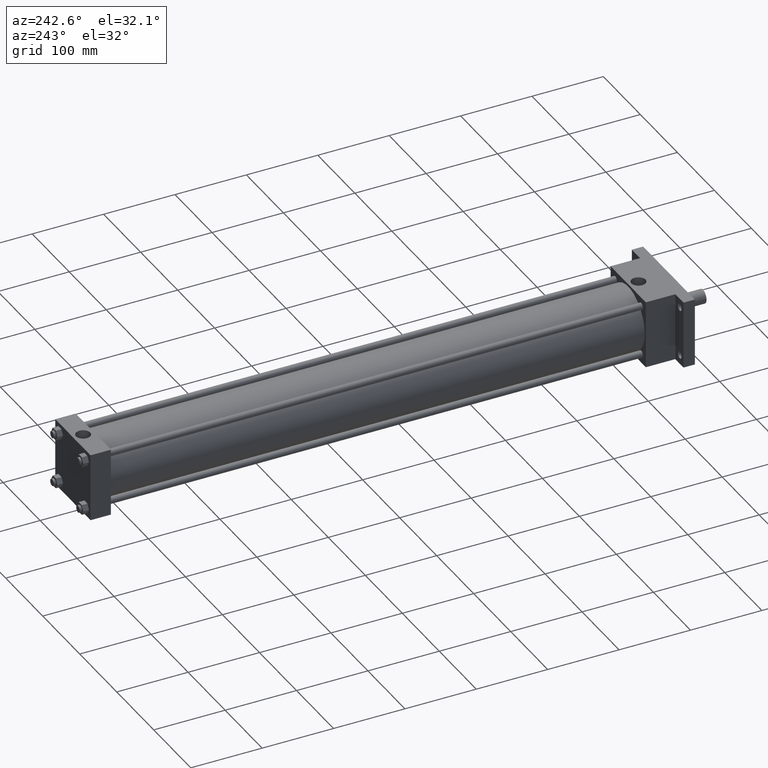
[diagram: clean part render]
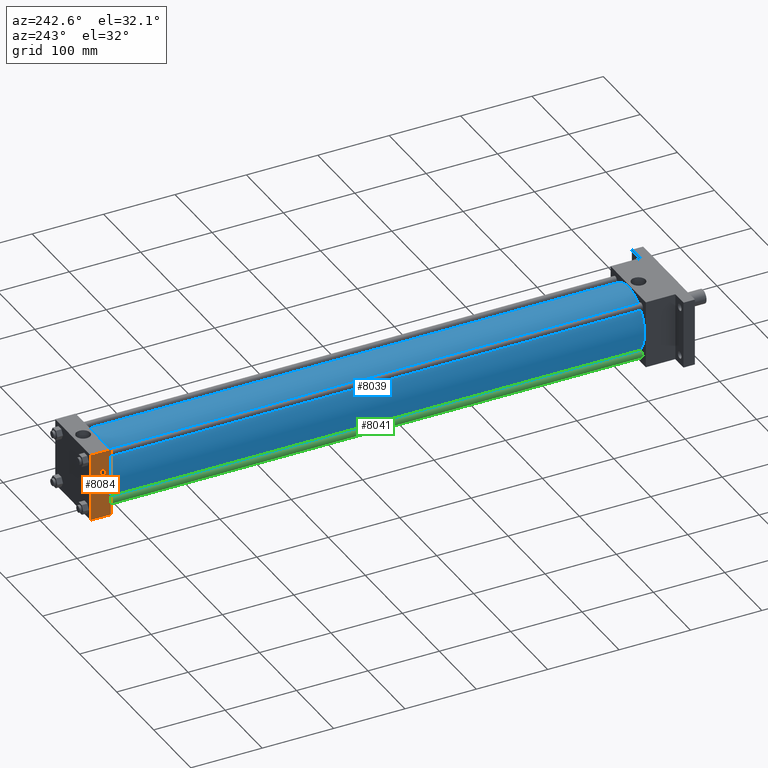
[diagram: same view with three faces highlighted in distinct colors, each labeled with its STEP entity id]
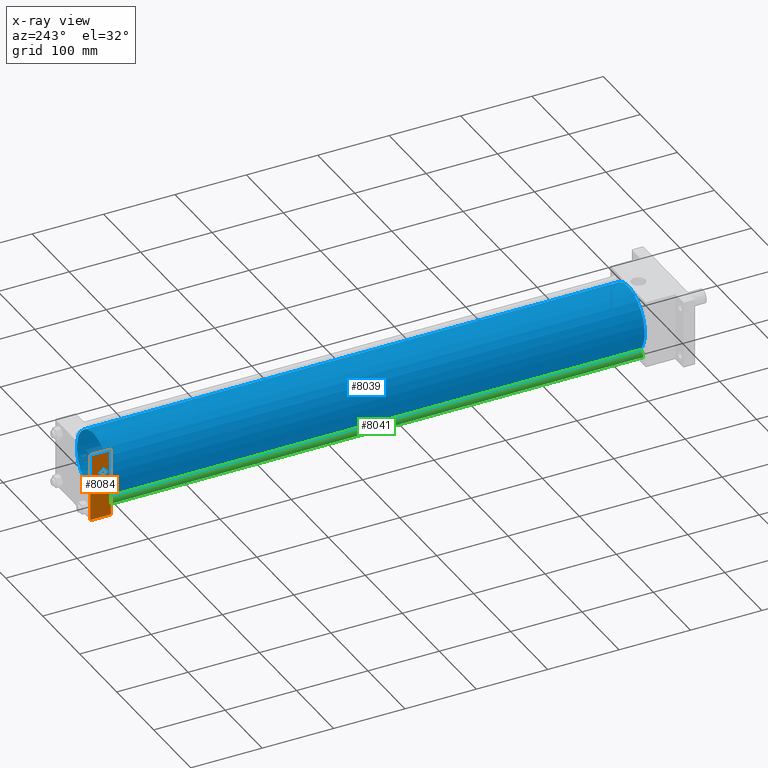
[diagram: x-ray of the same camera — body ghosted, the three highlighted faces saturated]
A machine part, auxiliary view with three faces highlighted in distinct colors.
The next image is the same camera in x-ray (body ghosted, the three faces saturated) — at least one of them is partly hidden behind the body in this view.
Their STEP definitions:

[orange] entity #8084 — the highlighted planar face has unit normal (-1, 0, 0).
#2244=VERTEX_POINT('',#2246);
#2246=CARTESIAN_POINT('',(-4.762500000E+001,8.540750000E+002,-4.762500000E+001));
#2248=EDGE_CURVE('',#2253,#2244,#2249,.T.);
#2249=LINE('',#2250,#2251);
#2250=CARTESIAN_POINT('',(-4.762500000E+001,8.540750000E+002,4.762500000E+001));
#2251=VECTOR('',#2252,1.0E+000);
#2252=DIRECTION('',(0.0E+000,0.0E+000,-1.0E+000));
#2253=VERTEX_POINT('',#2254);
#2254=CARTESIAN_POINT('',(-4.762500000E+001,8.540750000E+002,4.762500000E+001));
#2417=VERTEX_POINT('',#2419);
#2419=CARTESIAN_POINT('',(-4.762500000E+001,8.255000000E+002,-4.762500000E+001));
#2433=VERTEX_POINT('',#2434);
#2434=CARTESIAN_POINT('',(-4.762500000E+001,8.255000000E+002,4.762500000E+001));
#2435=EDGE_CURVE('',#2433,#2417,#2436,.T.);
#2436=LINE('',#2437,#2438);
#2437=CARTESIAN_POINT('',(-4.762500000E+001,8.255000000E+002,4.762500000E+001));
#2438=VECTOR('',#2439,1.0E+000);
#2439=DIRECTION('',(0.0E+000,0.0E+000,-1.0E+000));
#2462=EDGE_CURVE('',#2244,#2417,#2463,.T.);
#2463=LINE('',#2464,#2465);
#2464=CARTESIAN_POINT('',(-4.762500000E+001,8.540750000E+002,-4.762500000E+001));
#2465=VECTOR('',#2466,1.0E+000);
#2466=DIRECTION('',(0.0E+000,-1.0E+000,0.0E+000));
#2499=EDGE_CURVE('',#2253,#2433,#2500,.T.);
#2500=LINE('',#2501,#2502);
#2501=CARTESIAN_POINT('',(-4.762500000E+001,8.540750000E+002,4.762500000E+001));
#2502=VECTOR('',#2503,1.0E+000);
#2503=DIRECTION('',(0.0E+000,-1.0E+000,0.0E+000));
#2518=FACE_OUTER_BOUND('',#2520,.T.);
#2519=FACE_BOUND('',#2521,.T.);
#2520=EDGE_LOOP('',(#2522,#2523,#2524,#2525));
#2521=EDGE_LOOP('',(#2526));
#2522=ORIENTED_EDGE('',*,*,#2435,.F.);
#2523=ORIENTED_EDGE('',*,*,#2499,.F.);
#2524=ORIENTED_EDGE('',*,*,#2248,.T.);
#2525=ORIENTED_EDGE('',*,*,#2462,.T.);
#2526=ORIENTED_EDGE('',*,*,#2527,.T.);
#2527=EDGE_CURVE('',#2533,#2533,#2528,.T.);
#2528=CIRCLE('',#2529,4.365625000E+000);
#2529=AXIS2_PLACEMENT_3D('',#2530,#2531,#2532);
#2530=CARTESIAN_POINT('',(-4.762500000E+001,8.366125000E+002,1.746250000E+001));
#2531=DIRECTION('',(1.0E+000,0.0E+000,0.0E+000));
#2532=DIRECTION('',(0.0E+000,-1.0E+000,0.0E+000));
#2533=VERTEX_POINT('',#2534);
#2534=CARTESIAN_POINT('',(-4.762500000E+001,8.322468750E+002,1.746250000E+001));
#2535=PLANE('',#2536);
#2536=AXIS2_PLACEMENT_3D('',#2537,#2538,#2539);
#2537=CARTESIAN_POINT('',(-4.762500000E+001,8.540750000E+002,4.762500000E+001));
#2538=DIRECTION('',(-1.0E+000,0.0E+000,0.0E+000));
#2539=DIRECTION('',(0.0E+000,0.0E+000,1.0E+000));
#8084=ADVANCED_FACE('',(#2518,#2519),#2535,.T.);

[blue] entity #8039 — the highlighted cylindrical surface (bore or boss wall) has radius 44.45 mm, axis along (0, -1, 0).
#839=EDGE_CURVE('',#845,#845,#840,.T.);
#840=CIRCLE('',#841,4.445000000E+001);
#841=AXIS2_PLACEMENT_3D('',#842,#843,#844);
#842=CARTESIAN_POINT('',(0.000000000E+000,7.620000000E+001,0.000000000E+000));
#843=DIRECTION('',(0.0E+000,1.0E+000,0.0E+000));
#844=DIRECTION('',(1.0E+000,0.0E+000,0.0E+000));
#845=VERTEX_POINT('',#846);
#846=CARTESIAN_POINT('',(4.445000000E+001,7.620000000E+001,0.000000000E+000));
#1062=FACE_OUTER_BOUND('',#1064,.T.);
#1063=FACE_BOUND('',#1065,.T.);
#1064=EDGE_LOOP('',(#1066));
#1065=EDGE_LOOP('',(#1075));
#1066=ORIENTED_EDGE('',*,*,#1067,.F.);
#1067=EDGE_CURVE('',#1073,#1073,#1068,.T.);
#1068=CIRCLE('',#1069,4.445000000E+001);
#1069=AXIS2_PLACEMENT_3D('',#1070,#1071,#1072);
#1070=CARTESIAN_POINT('',(0.000000000E+000,8.255000000E+002,0.000000000E+000));
#1071=DIRECTION('',(0.0E+000,1.0E+000,0.0E+000));
#1072=DIRECTION('',(1.0E+000,0.0E+000,0.0E+000));
#1073=VERTEX_POINT('',#1074);
#1074=CARTESIAN_POINT('',(4.445000000E+001,8.255000000E+002,0.000000000E+000));
#1075=ORIENTED_EDGE('',*,*,#839,.T.);
#1076=CYLINDRICAL_SURFACE('',#1077,4.445000000E+001);
#1077=AXIS2_PLACEMENT_3D('',#1078,#1079,#1080);
#1078=CARTESIAN_POINT('',(0.000000000E+000,8.255000000E+002,0.000000000E+000));
#1079=DIRECTION('',(0.0E+000,-1.0E+000,0.0E+000));
#1080=DIRECTION('',(0.0E+000,0.0E+000,-1.0E+000));
#8039=ADVANCED_FACE('',(#1062,#1063),#1076,.T.);

[green] entity #8041 — the highlighted cylindrical surface (bore or boss wall) has radius 4.7625 mm, axis along (0, -1, 0).
#880=EDGE_CURVE('',#886,#886,#881,.T.);
#881=CIRCLE('',#882,4.762500000E+000);
#882=AXIS2_PLACEMENT_3D('',#883,#884,#885);
#883=CARTESIAN_POINT('',(-3.505200000E+001,7.620000000E+001,-3.505200000E+001));
#884=DIRECTION('',(0.0E+000,1.0E+000,0.0E+000));
#885=DIRECTION('',(1.0E+000,0.0E+000,0.0E+000));
#886=VERTEX_POINT('',#887);
#887=CARTESIAN_POINT('',(-3.028950000E+001,7.620000000E+001,-3.505200000E+001));
#1108=FACE_OUTER_BOUND('',#1110,.T.);
#1109=FACE_BOUND('',#1111,.T.);
#1110=EDGE_LOOP('',(#1112));
#1111=EDGE_LOOP('',(#1113));
#1112=ORIENTED_EDGE('',*,*,#1157,.F.);
#1113=ORIENTED_EDGE('',*,*,#880,.T.);
#1114=CYLINDRICAL_SURFACE('',#1115,4.762500000E+000);
#1115=AXIS2_PLACEMENT_3D('',#1116,#1117,#1118);
#1116=CARTESIAN_POINT('',(-3.505200000E+001,8.255000000E+002,-3.505200000E+001));
#1117=DIRECTION('',(0.0E+000,-1.0E+000,0.0E+000));
#1118=DIRECTION('',(0.0E+000,0.0E+000,-1.0E+000));
#1157=EDGE_CURVE('',#1163,#1163,#1158,.T.);
#1158=CIRCLE('',#1159,4.762500000E+000);
#1159=AXIS2_PLACEMENT_3D('',#1160,#1161,#1162);
#1160=CARTESIAN_POINT('',(-3.505200000E+001,8.255000000E+002,-3.505200000E+001));
#1161=DIRECTION('',(0.0E+000,1.0E+000,0.0E+000));
#1162=DIRECTION('',(1.0E+000,0.0E+000,0.0E+000));
#1163=VERTEX_POINT('',#1164);
#1164=CARTESIAN_POINT('',(-3.028950000E+001,8.255000000E+002,-3.505200000E+001));
#8041=ADVANCED_FACE('',(#1108,#1109),#1114,.T.);